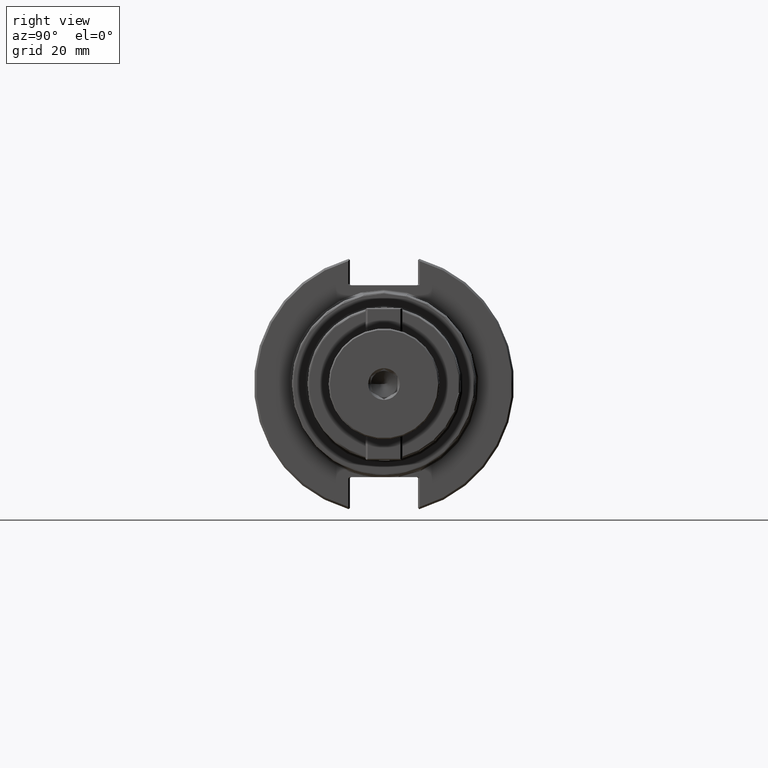
[diagram: clean part render]
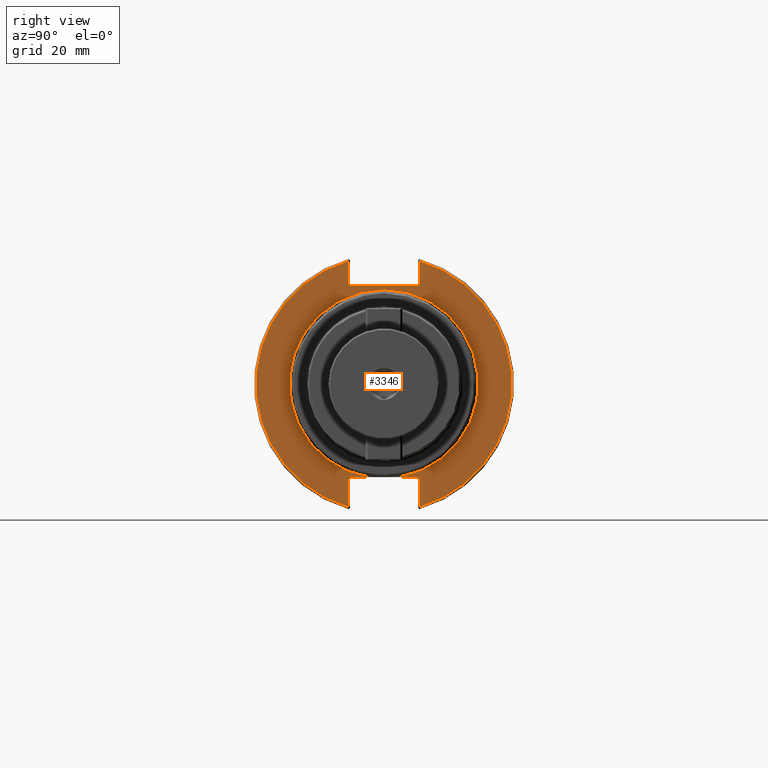
[diagram: same view with one face highlighted and labeled with its STEP entity id]
A machine part, right view. The second image highlights one B-rep face of the part: STEP entity #3346.
In plain terms, the highlighted planar face has unit normal (1, 0, 0).
Its self-contained STEP definition (entity closure, byte-faithful):
#47=ELLIPSE('',#3725,0.0282842712474619,0.02);
#51=ELLIPSE('',#3734,0.0282842712474619,0.02);
#58=ELLIPSE('',#3748,0.028284271247462,0.02);
#62=ELLIPSE('',#3757,0.0282842712474619,0.02);
#256=PLANE('',#3786);
#402=FACE_OUTER_BOUND('',#602,.T.);
#602=EDGE_LOOP('',(#2665,#2666,#2667,#2668,#2669,#2670,#2671,#2672,#2673,
#2674,#2675,#2676,#2677,#2678,#2679));
#753=CIRCLE('',#3667,1.405);
#755=CIRCLE('',#3669,1.405);
#796=CIRCLE('',#3784,1.9075);
#798=CIRCLE('',#3787,1.9075);
#946=LINE('',#6457,#1172);
#954=LINE('',#6489,#1180);
#964=LINE('',#6526,#1190);
#972=LINE('',#6558,#1198);
#979=LINE('',#6607,#1205);
#983=LINE('',#6636,#1209);
#984=LINE('',#6638,#1210);
#1172=VECTOR('',#4348,0.393700787401575);
#1180=VECTOR('',#4374,0.393700787401575);
#1190=VECTOR('',#4404,0.393700787401575);
#1198=VECTOR('',#4430,0.393700787401575);
#1205=VECTOR('',#4471,0.393700787401575);
#1209=VECTOR('',#4495,0.393700787401575);
#1210=VECTOR('',#4498,0.393700787401575);
#1384=VERTEX_POINT('',#5255);
#1385=VERTEX_POINT('',#5256);
#1386=VERTEX_POINT('',#5268);
#1466=VERTEX_POINT('',#6433);
#1467=VERTEX_POINT('',#6435);
#1473=VERTEX_POINT('',#6453);
#1475=VERTEX_POINT('',#6465);
#1476=VERTEX_POINT('',#6466);
#1482=VERTEX_POINT('',#6485);
#1489=VERTEX_POINT('',#6511);
#1490=VERTEX_POINT('',#6513);
#1493=VERTEX_POINT('',#6525);
#1499=VERTEX_POINT('',#6545);
#1500=VERTEX_POINT('',#6547);
#1502=VERTEX_POINT('',#6557);
#1734=EDGE_CURVE('',#1384,#1386,#753,.T.);
#1736=EDGE_CURVE('',#1386,#1385,#755,.T.);
#1850=EDGE_CURVE('',#1466,#1467,#47,.T.);
#1860=EDGE_CURVE('',#1473,#1466,#946,.T.);
#1863=EDGE_CURVE('',#1475,#1476,#51,.T.);
#1874=EDGE_CURVE('',#1482,#1475,#954,.T.);
#1885=EDGE_CURVE('',#1489,#1490,#58,.T.);
#1890=EDGE_CURVE('',#1490,#1493,#964,.T.);
#1900=EDGE_CURVE('',#1499,#1500,#62,.T.);
#1904=EDGE_CURVE('',#1500,#1502,#972,.T.);
#1925=EDGE_CURVE('',#1499,#1467,#979,.T.);
#1933=EDGE_CURVE('',#1493,#1473,#796,.T.);
#1936=EDGE_CURVE('',#1384,#1476,#983,.T.);
#1937=EDGE_CURVE('',#1502,#1482,#798,.T.);
#1938=EDGE_CURVE('',#1489,#1385,#984,.T.);
#2665=ORIENTED_EDGE('',*,*,#1734,.F.);
#2666=ORIENTED_EDGE('',*,*,#1936,.T.);
#2667=ORIENTED_EDGE('',*,*,#1863,.F.);
#2668=ORIENTED_EDGE('',*,*,#1874,.F.);
#2669=ORIENTED_EDGE('',*,*,#1937,.F.);
#2670=ORIENTED_EDGE('',*,*,#1904,.F.);
#2671=ORIENTED_EDGE('',*,*,#1900,.F.);
#2672=ORIENTED_EDGE('',*,*,#1925,.T.);
#2673=ORIENTED_EDGE('',*,*,#1850,.F.);
#2674=ORIENTED_EDGE('',*,*,#1860,.F.);
#2675=ORIENTED_EDGE('',*,*,#1933,.F.);
#2676=ORIENTED_EDGE('',*,*,#1890,.F.);
#2677=ORIENTED_EDGE('',*,*,#1885,.F.);
#2678=ORIENTED_EDGE('',*,*,#1938,.T.);
#2679=ORIENTED_EDGE('',*,*,#1736,.F.);
#3346=ADVANCED_FACE('',(#402),#256,.T.);
#3667=AXIS2_PLACEMENT_3D('',#5269,#4166,#4167);
#3669=AXIS2_PLACEMENT_3D('',#5271,#4170,#4171);
#3725=AXIS2_PLACEMENT_3D('',#6436,#4329,#4330);
#3734=AXIS2_PLACEMENT_3D('',#6467,#4354,#4355);
#3748=AXIS2_PLACEMENT_3D('',#6514,#4395,#4396);
#3757=AXIS2_PLACEMENT_3D('',#6548,#4422,#4423);
#3784=AXIS2_PLACEMENT_3D('',#6629,#4489,#4490);
#3786=AXIS2_PLACEMENT_3D('',#6635,#4493,#4494);
#3787=AXIS2_PLACEMENT_3D('',#6637,#4496,#4497);
#4166=DIRECTION('center_axis',(1.,0.,0.));
#4167=DIRECTION('ref_axis',(0.,-1.,1.22464679914735E-16));
#4170=DIRECTION('center_axis',(1.,0.,0.));
#4171=DIRECTION('ref_axis',(0.,-1.,1.22464679914735E-16));
#4329=DIRECTION('center_axis',(1.,0.,0.));
#4330=DIRECTION('ref_axis',(0.,-1.,1.93170824149086E-16));
#4348=DIRECTION('',(0.,0.,-1.));
#4354=DIRECTION('center_axis',(1.,0.,0.));
#4355=DIRECTION('ref_axis',(0.,1.,-1.93170824149086E-16));
#4374=DIRECTION('',(0.,0.,1.));
#4395=DIRECTION('center_axis',(1.,0.,0.));
#4396=DIRECTION('ref_axis',(-3.41480999208029E-17,-1.,-9.65854120745431E-17));
#4404=DIRECTION('',(0.,0.,-1.));
#4422=DIRECTION('center_axis',(1.,0.,0.));
#4423=DIRECTION('ref_axis',(0.,1.,1.93170824149086E-16));
#4430=DIRECTION('',(0.,0.,1.));
#4471=DIRECTION('',(0.,-1.,6.01790140173613E-31));
#4489=DIRECTION('center_axis',(-1.,0.,0.));
#4490=DIRECTION('ref_axis',(0.,-1.,0.));
#4493=DIRECTION('center_axis',(1.,0.,0.));
#4494=DIRECTION('ref_axis',(0.,0.,-1.));
#4495=DIRECTION('',(0.,1.,4.17909819565459E-33));
#4496=DIRECTION('center_axis',(-1.,0.,0.));
#4497=DIRECTION('ref_axis',(0.,1.,0.));
#4498=DIRECTION('',(0.,1.,4.17909819565459E-33));
#5255=CARTESIAN_POINT('',(0.75,0.217901353827828,-1.388));
#5256=CARTESIAN_POINT('',(0.75,-0.217901353827828,-1.388));
#5268=CARTESIAN_POINT('',(0.75,-1.72062875280203E-16,1.405));
#5269=CARTESIAN_POINT('Origin',(0.75,0.,0.));
#5271=CARTESIAN_POINT('Origin',(0.75,0.,0.));
#6433=CARTESIAN_POINT('',(0.75,-0.532499999999821,1.492));
#6435=CARTESIAN_POINT('',(0.75,-0.504215728752359,1.472));
#6436=CARTESIAN_POINT('Origin',(0.75,-0.504215728752359,1.492));
#6453=CARTESIAN_POINT('',(0.75,-0.532499999999821,1.83166590840147));
#6457=CARTESIAN_POINT('',(0.75,-0.532499999999821,0.736));
#6465=CARTESIAN_POINT('',(0.75,0.532500000000284,-1.408));
#6466=CARTESIAN_POINT('',(0.75,0.504215728752822,-1.388));
#6467=CARTESIAN_POINT('Origin',(0.75,0.504215728752822,-1.408));
#6485=CARTESIAN_POINT('',(0.75,0.532500000000284,-1.83166590840134));
#6489=CARTESIAN_POINT('',(0.75,0.532500000000284,-0.694));
#6511=CARTESIAN_POINT('',(0.75,-0.504215728752254,-1.388));
#6513=CARTESIAN_POINT('',(0.75,-0.532499999999715,-1.408));
#6514=CARTESIAN_POINT('Origin',(0.75,-0.504215728752254,-1.408));
#6525=CARTESIAN_POINT('',(0.75,-0.532499999999715,-1.8316659084015));
#6526=CARTESIAN_POINT('',(0.75,-0.532499999999715,-0.694));
#6545=CARTESIAN_POINT('',(0.75,0.504215728752717,1.472));
#6547=CARTESIAN_POINT('',(0.75,0.532500000000179,1.492));
#6548=CARTESIAN_POINT('Origin',(0.75,0.504215728752717,1.492));
#6557=CARTESIAN_POINT('',(0.75,0.532500000000179,1.83166590840137));
#6558=CARTESIAN_POINT('',(0.75,0.532500000000179,0.736));
#6607=CARTESIAN_POINT('',(0.75,0.828125000000089,1.472));
#6629=CARTESIAN_POINT('Origin',(0.75,0.,0.));
#6635=CARTESIAN_POINT('Origin',(0.75,1.65625,0.));
#6636=CARTESIAN_POINT('',(0.75,0.828125000000135,-1.388));
#6637=CARTESIAN_POINT('Origin',(0.75,0.,0.));
#6638=CARTESIAN_POINT('',(0.75,0.828125000000135,-1.388));